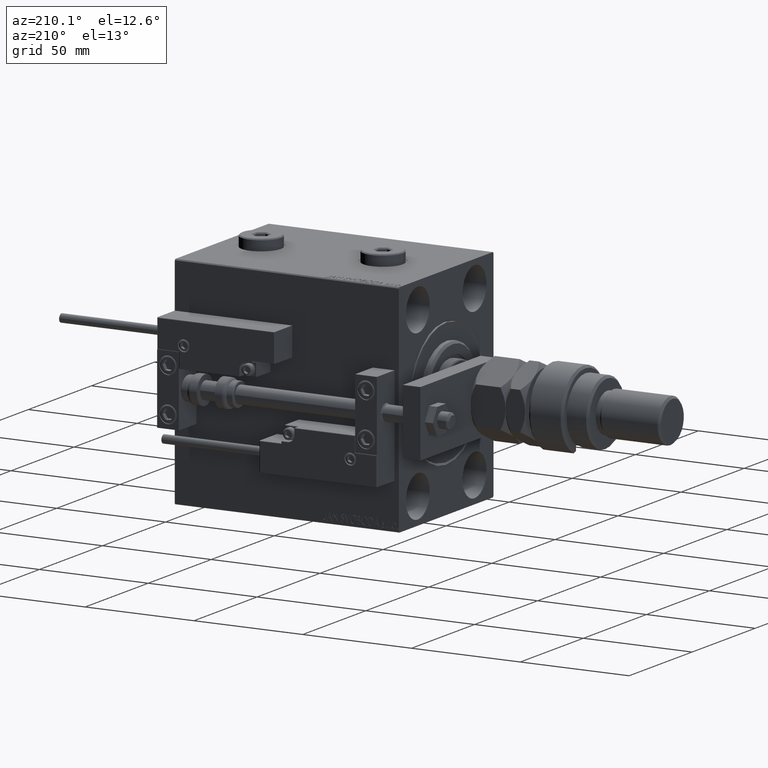
[diagram: clean part render]
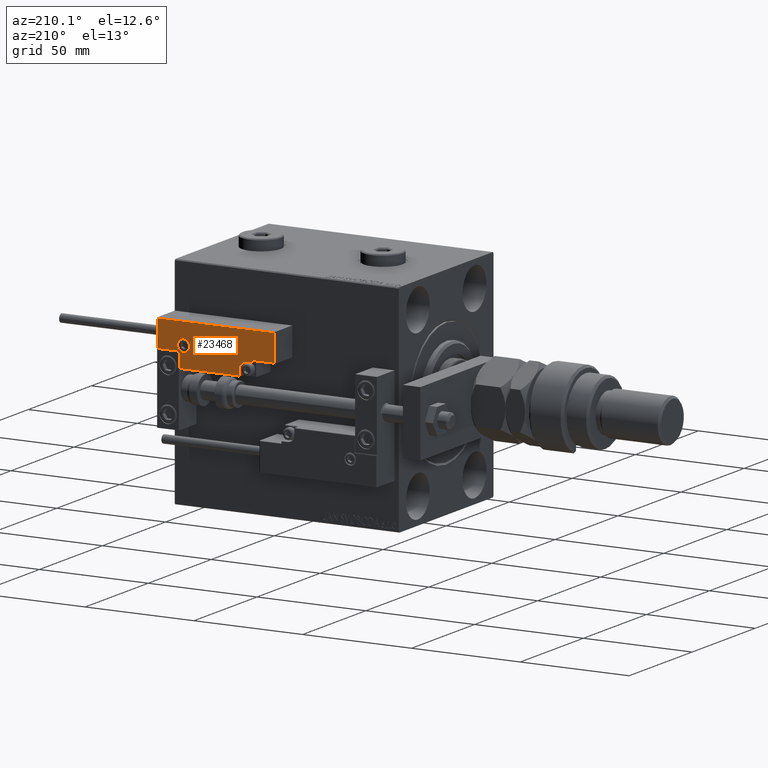
[diagram: same view with one face highlighted and labeled with its STEP entity id]
A machine part, auxiliary view. The second image highlights one B-rep face of the part: STEP entity #23468.
In plain terms, the highlighted planar face has unit normal (0, 1, -0).
Its self-contained STEP definition (entity closure, byte-faithful):
#110 = AXIS2_PLACEMENT_3D ( 'NONE', #36219, #15266, #28188 ) ;
#1271 = DIRECTION ( 'NONE',  ( 0.000000000000000000, -0.000000000000000000, -1.000000000000000000 ) ) ;
#1931 = VERTEX_POINT ( 'NONE', #47966 ) ;
#2967 = CARTESIAN_POINT ( 'NONE',  ( -16.69999999999999218, 7.300000000000003375, 14.00000000000000000 ) ) ;
#3011 = VERTEX_POINT ( 'NONE', #11244 ) ;
#3502 = CARTESIAN_POINT ( 'NONE',  ( -17.59999999999994813, 9.800000000000004263, 14.00000000000000000 ) ) ;
#3768 = EDGE_LOOP ( 'NONE', ( #42718, #28139, #39677, #25369, #22733, #12529, #26891, #20907, #23832, #41696, #31023 ) ) ;
#4557 = EDGE_CURVE ( 'NONE', #44806, #13109, #26042, .T. ) ;
#4650 = DIRECTION ( 'NONE',  ( 1.000000000000000000, -1.734723475976815230E-16, 0.000000000000000000 ) ) ;
#4989 = EDGE_CURVE ( 'NONE', #6930, #8830, #46898, .T. ) ;
#5646 = EDGE_CURVE ( 'NONE', #21783, #44806, #51252, .T. ) ;
#5735 = DIRECTION ( 'NONE',  ( 1.000000000000000000, -0.000000000000000000, 0.000000000000000000 ) ) ;
#6167 = CIRCLE ( 'NONE', #15849, 3.299999999999997158 ) ;
#6199 = LINE ( 'NONE', #35982, #40517 ) ;
#6407 = VERTEX_POINT ( 'NONE', #22360 ) ;
#6725 = CARTESIAN_POINT ( 'NONE',  ( 26.70000000000006324, 20.00000000000001776, 14.00000000000000000 ) ) ;
#6930 = VERTEX_POINT ( 'NONE', #3502 ) ;
#7000 = DIRECTION ( 'NONE',  ( -0.000000000000000000, 1.000000000000000000, -0.000000000000000000 ) ) ;
#8830 = VERTEX_POINT ( 'NONE', #20419 ) ;
#9630 = VECTOR ( 'NONE', #44928, 1000.000000000000000 ) ;
#9845 = EDGE_CURVE ( 'NONE', #18618, #53664, #40674, .T. ) ;
#9867 = VECTOR ( 'NONE', #52269, 1000.000000000000000 ) ;
#10522 = VERTEX_POINT ( 'NONE', #14809 ) ;
#10597 = CARTESIAN_POINT ( 'NONE',  ( 27.00000000000006395, 7.300000000000007816, 14.00000000000000000 ) ) ;
#11244 = CARTESIAN_POINT ( 'NONE',  ( 16.69999999999999929, 7.300000000000009592, 14.00000000000000000 ) ) ;
#11270 = LINE ( 'NONE', #28079, #9630 ) ;
#11382 = PLANE ( 'NONE',  #110 ) ;
#11644 = VECTOR ( 'NONE', #4650, 1000.000000000000000 ) ;
#12529 = ORIENTED_EDGE ( 'NONE', *, *, #24870, .T. ) ;
#13109 = VERTEX_POINT ( 'NONE', #38947 ) ;
#13465 = LINE ( 'NONE', #34424, #17876 ) ;
#13770 = CARTESIAN_POINT ( 'NONE',  ( -26.69999999999994600, 7.000000000000005329, 14.00000000000000000 ) ) ;
#14809 = CARTESIAN_POINT ( 'NONE',  ( -26.69999999999993534, 19.70000000000002061, 14.00000000000000000 ) ) ;
#15105 = DIRECTION ( 'NONE',  ( 1.000000000000000000, 0.000000000000000000, 0.000000000000000000 ) ) ;
#15266 = DIRECTION ( 'NONE',  ( -0.000000000000000000, 0.000000000000000000, 1.000000000000000000 ) ) ;
#15849 = AXIS2_PLACEMENT_3D ( 'NONE', #19235, #52878, #15105 ) ;
#17157 = CARTESIAN_POINT ( 'NONE',  ( 13.99999999999999822, 6.300000000000001599, 14.00000000000000000 ) ) ;
#17876 = VECTOR ( 'NONE', #5735, 1000.000000000000000 ) ;
#18618 = VERTEX_POINT ( 'NONE', #50095 ) ;
#18619 = LINE ( 'NONE', #10597, #9867 ) ;
#18820 = ORIENTED_EDGE ( 'NONE', *, *, #4989, .T. ) ;
#19235 = CARTESIAN_POINT ( 'NONE',  ( 13.99999999999999822, 3.000000000000002665, 14.00000000000000000 ) ) ;
#19413 = DIRECTION ( 'NONE',  ( 0.000000000000000000, 1.000000000000000000, -0.000000000000000000 ) ) ;
#19616 = EDGE_CURVE ( 'NONE', #45150, #6407, #53596, .T. ) ;
#20207 = EDGE_CURVE ( 'NONE', #53664, #10522, #11270, .T. ) ;
#20400 = EDGE_CURVE ( 'NONE', #34648, #1931, #6199, .T. ) ;
#20419 = CARTESIAN_POINT ( 'NONE',  ( -11.99999999999994849, 9.800000000000004263, 14.00000000000000000 ) ) ;
#20452 = ORIENTED_EDGE ( 'NONE', *, *, #31883, .T. ) ;
#20907 = ORIENTED_EDGE ( 'NONE', *, *, #9845, .T. ) ;
#21416 = EDGE_CURVE ( 'NONE', #6407, #34648, #6167, .T. ) ;
#21783 = VERTEX_POINT ( 'NONE', #31853 ) ;
#21882 = CARTESIAN_POINT ( 'NONE',  ( 10.69999999999999929, 0.3000000000000032085, 14.00000000000000000 ) ) ;
#22360 = CARTESIAN_POINT ( 'NONE',  ( 10.69999999999999929, 3.000000000000003109, 14.00000000000000000 ) ) ;
#22441 = DIRECTION ( 'NONE',  ( 9.912705577010318647E-16, 1.000000000000000000, 0.000000000000000000 ) ) ;
#22733 = ORIENTED_EDGE ( 'NONE', *, *, #20400, .T. ) ;
#23468 = ADVANCED_FACE ( 'NONE', ( #48920, #45320 ), #11382, .T. ) ;
#23832 = ORIENTED_EDGE ( 'NONE', *, *, #20207, .T. ) ;
#23833 = VECTOR ( 'NONE', #19413, 1000.000000000000000 ) ;
#24070 = DIRECTION ( 'NONE',  ( 0.000000000000000000, -0.000000000000000000, -1.000000000000000000 ) ) ;
#24870 = EDGE_CURVE ( 'NONE', #1931, #3011, #51414, .T. ) ;
#25369 = ORIENTED_EDGE ( 'NONE', *, *, #21416, .T. ) ;
#26042 = LINE ( 'NONE', #39041, #33651 ) ;
#26891 = ORIENTED_EDGE ( 'NONE', *, *, #54387, .T. ) ;
#28079 = CARTESIAN_POINT ( 'NONE',  ( -26.99999999999993605, 19.70000000000002061, 14.00000000000000000 ) ) ;
#28139 = ORIENTED_EDGE ( 'NONE', *, *, #28206, .T. ) ;
#28188 = DIRECTION ( 'NONE',  ( 1.000000000000000000, 0.000000000000000000, 0.000000000000000000 ) ) ;
#28206 = EDGE_CURVE ( 'NONE', #13109, #45150, #13465, .T. ) ;
#31023 = ORIENTED_EDGE ( 'NONE', *, *, #5646, .T. ) ;
#31028 = DIRECTION ( 'NONE',  ( 1.000000000000000000, 0.000000000000000000, 0.000000000000000000 ) ) ;
#31837 = DIRECTION ( 'NONE',  ( 1.000000000000000000, 5.782411586589357639E-16, -0.000000000000000000 ) ) ;
#31853 = CARTESIAN_POINT ( 'NONE',  ( -26.69999999999994600, 7.300000000000005151, 14.00000000000000000 ) ) ;
#31883 = EDGE_CURVE ( 'NONE', #8830, #6930, #49625, .T. ) ;
#32917 = CARTESIAN_POINT ( 'NONE',  ( 10.69999999999999929, 3.000000000000003109, 14.00000000000000000 ) ) ;
#33651 = VECTOR ( 'NONE', #42885, 1000.000000000000000 ) ;
#34424 = CARTESIAN_POINT ( 'NONE',  ( 11.00000000000000000, 0.3000000000000032085, 14.00000000000000000 ) ) ;
#34648 = VERTEX_POINT ( 'NONE', #17157 ) ;
#35768 = CARTESIAN_POINT ( 'NONE',  ( 26.70000000000006324, 19.70000000000001705, 14.00000000000000000 ) ) ;
#35982 = CARTESIAN_POINT ( 'NONE',  ( 17.00000000000000000, 6.300000000000003375, 14.00000000000000000 ) ) ;
#36218 = DIRECTION ( 'NONE',  ( 1.000000000000000000, 0.000000000000000000, 0.000000000000000000 ) ) ;
#36219 = CARTESIAN_POINT ( 'NONE',  ( 0.000000000000000000, 0.000000000000000000, 14.00000000000000000 ) ) ;
#37204 = AXIS2_PLACEMENT_3D ( 'NONE', #47869, #1271, #31028 ) ;
#38696 = VECTOR ( 'NONE', #7000, 1000.000000000000000 ) ;
#38947 = CARTESIAN_POINT ( 'NONE',  ( -16.69999999999999218, 0.3000000000000032085, 14.00000000000000000 ) ) ;
#39041 = CARTESIAN_POINT ( 'NONE',  ( -16.69999999999999218, 3.252606517456513302E-15, 14.00000000000000000 ) ) ;
#39677 = ORIENTED_EDGE ( 'NONE', *, *, #19616, .T. ) ;
#40517 = VECTOR ( 'NONE', #31837, 1000.000000000000000 ) ;
#40674 = LINE ( 'NONE', #6725, #23833 ) ;
#41288 = EDGE_LOOP ( 'NONE', ( #20452, #18820 ) ) ;
#41696 = ORIENTED_EDGE ( 'NONE', *, *, #46847, .T. ) ;
#42200 = VECTOR ( 'NONE', #47970, 1000.000000000000000 ) ;
#42718 = ORIENTED_EDGE ( 'NONE', *, *, #4557, .T. ) ;
#42885 = DIRECTION ( 'NONE',  ( 0.000000000000000000, -1.000000000000000000, 0.000000000000000000 ) ) ;
#43253 = CARTESIAN_POINT ( 'NONE',  ( -16.99999999999999289, 7.300000000000003375, 14.00000000000000000 ) ) ;
#43465 = AXIS2_PLACEMENT_3D ( 'NONE', #48645, #24070, #36218 ) ;
#44806 = VERTEX_POINT ( 'NONE', #2967 ) ;
#44928 = DIRECTION ( 'NONE',  ( -1.000000000000000000, 6.424901762877063495E-17, -0.000000000000000000 ) ) ;
#45150 = VERTEX_POINT ( 'NONE', #21882 ) ;
#45320 = FACE_OUTER_BOUND ( 'NONE', #3768, .T. ) ;
#46847 = EDGE_CURVE ( 'NONE', #10522, #21783, #47420, .T. ) ;
#46898 = CIRCLE ( 'NONE', #37204, 2.800000000000000266 ) ;
#47268 = CARTESIAN_POINT ( 'NONE',  ( 16.69999999999999929, 7.000000000000009770, 14.00000000000000000 ) ) ;
#47420 = LINE ( 'NONE', #13770, #42200 ) ;
#47869 = CARTESIAN_POINT ( 'NONE',  ( -14.79999999999994920, 9.800000000000004263, 14.00000000000000000 ) ) ;
#47966 = CARTESIAN_POINT ( 'NONE',  ( 16.69999999999999929, 6.300000000000003375, 14.00000000000000000 ) ) ;
#47970 = DIRECTION ( 'NONE',  ( -8.006416042969869188E-16, -1.000000000000000000, 0.000000000000000000 ) ) ;
#48572 = VECTOR ( 'NONE', #22441, 1000.000000000000000 ) ;
#48645 = CARTESIAN_POINT ( 'NONE',  ( -14.79999999999994920, 9.800000000000004263, 14.00000000000000000 ) ) ;
#48920 = FACE_BOUND ( 'NONE', #41288, .T. ) ;
#49625 = CIRCLE ( 'NONE', #43465, 2.800000000000000266 ) ;
#50095 = CARTESIAN_POINT ( 'NONE',  ( 26.70000000000006324, 7.300000000000007816, 14.00000000000000000 ) ) ;
#51252 = LINE ( 'NONE', #43253, #11644 ) ;
#51414 = LINE ( 'NONE', #47268, #48572 ) ;
#52269 = DIRECTION ( 'NONE',  ( 1.000000000000000000, -1.734723475976796001E-16, 0.000000000000000000 ) ) ;
#52878 = DIRECTION ( 'NONE',  ( 0.000000000000000000, -0.000000000000000000, -1.000000000000000000 ) ) ;
#53596 = LINE ( 'NONE', #32917, #38696 ) ;
#53664 = VERTEX_POINT ( 'NONE', #35768 ) ;
#54387 = EDGE_CURVE ( 'NONE', #3011, #18618, #18619, .T. ) ;